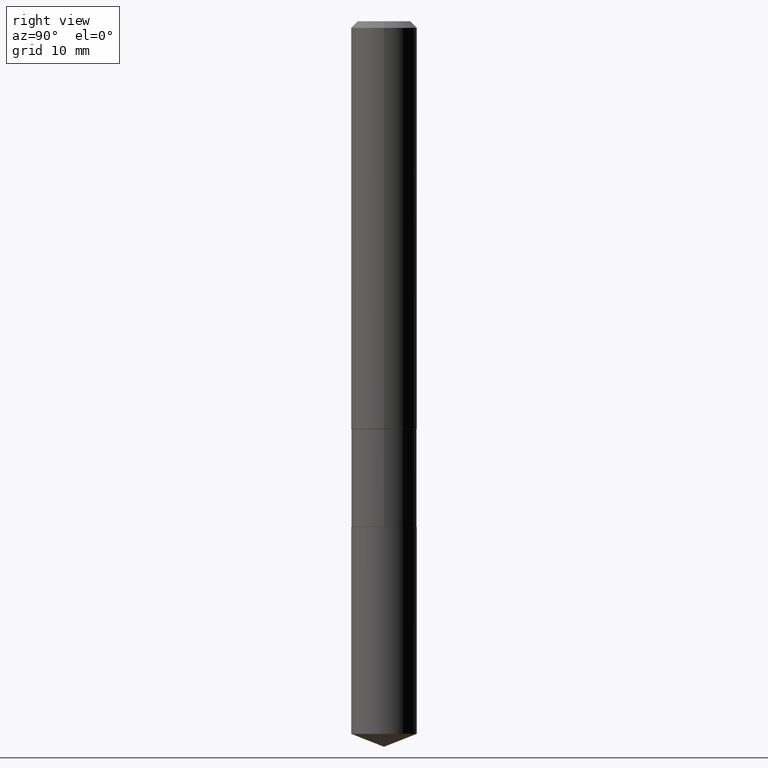
[diagram: clean part render]
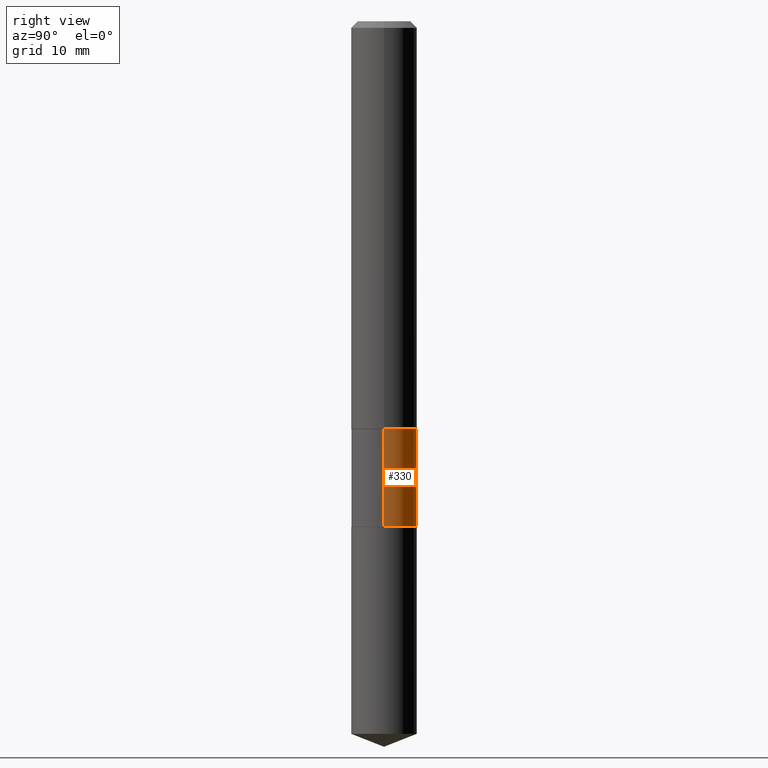
[diagram: same view with one face highlighted and labeled with its STEP entity id]
A machine part, right view. The second image highlights one B-rep face of the part: STEP entity #330.
In plain terms, the highlighted cylindrical surface (edge-blend (fillet) strip) has radius 2.9769 mm, axis along (-0, 0, 1).
Its self-contained STEP definition (entity closure, byte-faithful):
#9 = CARTESIAN_POINT ( 'NONE',  ( 0.1171999999999999709, -8.184032258248302581E-16, 5.714879181232835073E-30 ) ) ;
#23 = DIRECTION ( 'NONE',  ( 1.000000000000000000, -6.982962677686262766E-15, 0.000000000000000000 ) ) ;
#33 = VERTEX_POINT ( 'NONE', #391 ) ;
#37 = VECTOR ( 'NONE', #348, 39.37007874015748143 ) ;
#40 = CYLINDRICAL_SURFACE ( 'NONE', #169, 0.1171999999999999709 ) ;
#47 = DIRECTION ( 'NONE',  ( 1.000000000000000000, -6.982962677686265133E-15, 0.000000000000000000 ) ) ;
#60 = EDGE_CURVE ( 'NONE', #33, #244, #390, .T. ) ;
#73 = VERTEX_POINT ( 'NONE', #160 ) ;
#81 = AXIS2_PLACEMENT_3D ( 'NONE', #359, #429, #23 ) ;
#84 = DIRECTION ( 'NONE',  ( -2.445468806185136597E-29, 3.491481338843145583E-15, 1.000000000000000000 ) ) ;
#87 = CARTESIAN_POINT ( 'NONE',  ( 3.572340832075246748E-29, -5.100355939782065986E-15, -1.460799999999999876 ) ) ;
#108 = EDGE_LOOP ( 'NONE', ( #255, #403, #248, #120 ) ) ;
#120 = ORIENTED_EDGE ( 'NONE', *, *, #60, .F. ) ;
#131 = VECTOR ( 'NONE', #465, 39.37007874015748143 ) ;
#160 = CARTESIAN_POINT ( 'NONE',  ( -0.1171999999999999986, -4.878085365567953422E-15, -1.810499999999999998 ) ) ;
#169 = AXIS2_PLACEMENT_3D ( 'NONE', #303, #263, #197 ) ;
#175 = LINE ( 'NONE', #322, #131 ) ;
#178 = CIRCLE ( 'NONE', #81, 0.1171999999999999847 ) ;
#197 = DIRECTION ( 'NONE',  ( 1.000000000000000000, -6.982962677686266711E-15, 4.876176775795935793E-29 ) ) ;
#217 = VERTEX_POINT ( 'NONE', #267 ) ;
#227 = CARTESIAN_POINT ( 'NONE',  ( 0.1171999999999999431, -5.918759165606896047E-15, -1.460799999999999876 ) ) ;
#229 = FACE_OUTER_BOUND ( 'NONE', #108, .T. ) ;
#244 = VERTEX_POINT ( 'NONE', #227 ) ;
#248 = ORIENTED_EDGE ( 'NONE', *, *, #297, .F. ) ;
#255 = ORIENTED_EDGE ( 'NONE', *, *, #282, .T. ) ;
#257 = AXIS2_PLACEMENT_3D ( 'NONE', #87, #84, #47 ) ;
#263 = DIRECTION ( 'NONE',  ( -2.445468806185136597E-29, 3.491481338843145583E-15, 1.000000000000000000 ) ) ;
#267 = CARTESIAN_POINT ( 'NONE',  ( -0.1171999999999999431, -4.878085365567953422E-15, -1.460799999999999876 ) ) ;
#278 = CIRCLE ( 'NONE', #257, 0.1171999999999999431 ) ;
#282 = EDGE_CURVE ( 'NONE', #33, #73, #178, .T. ) ;
#294 = EDGE_CURVE ( 'NONE', #73, #217, #175, .T. ) ;
#297 = EDGE_CURVE ( 'NONE', #244, #217, #278, .T. ) ;
#303 = CARTESIAN_POINT ( 'NONE',  ( 0.000000000000000000, 0.000000000000000000, 0.000000000000000000 ) ) ;
#322 = CARTESIAN_POINT ( 'NONE',  ( -0.1171999999999999709, 8.327560863108372108E-16, -5.764991925778747720E-30 ) ) ;
#330 = ADVANCED_FACE ( 'NONE', ( #229 ), #40, .T. ) ;
#348 = DIRECTION ( 'NONE',  ( -2.445468806185136877E-29, 3.491481338843145188E-15, 1.000000000000000000 ) ) ;
#359 = CARTESIAN_POINT ( 'NONE',  ( 4.427521273598189436E-29, -6.321326963975514491E-15, -1.810499999999999998 ) ) ;
#390 = LINE ( 'NONE', #9, #37 ) ;
#391 = CARTESIAN_POINT ( 'NONE',  ( 0.1171999999999999847, -7.139730189800343763E-15, -1.810499999999999998 ) ) ;
#403 = ORIENTED_EDGE ( 'NONE', *, *, #294, .T. ) ;
#429 = DIRECTION ( 'NONE',  ( -2.445468806185136597E-29, 3.491481338843145583E-15, 1.000000000000000000 ) ) ;
#465 = DIRECTION ( 'NONE',  ( -2.445468806185136877E-29, 3.491481338843145188E-15, 1.000000000000000000 ) ) ;